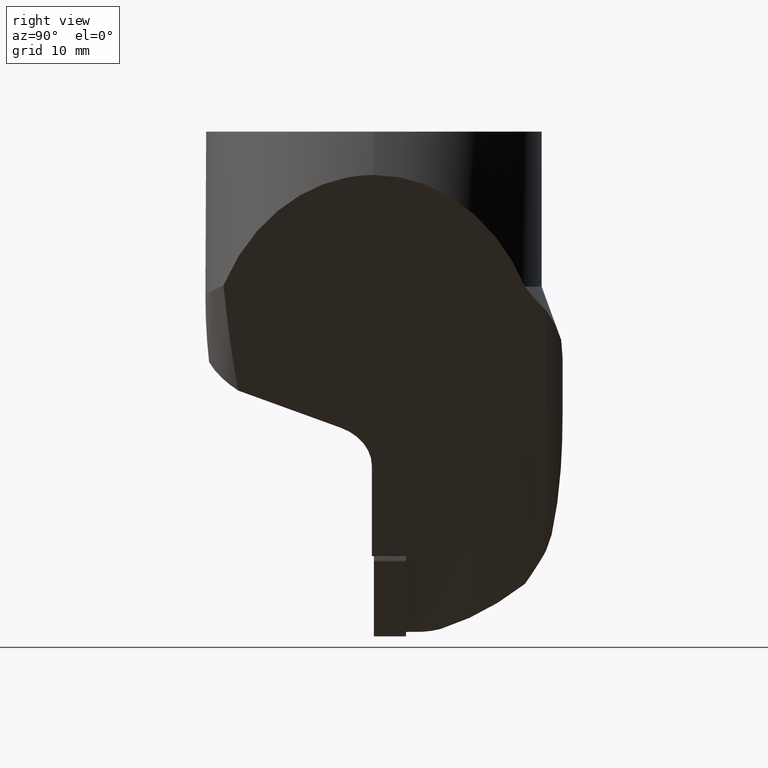
[diagram: clean part render]
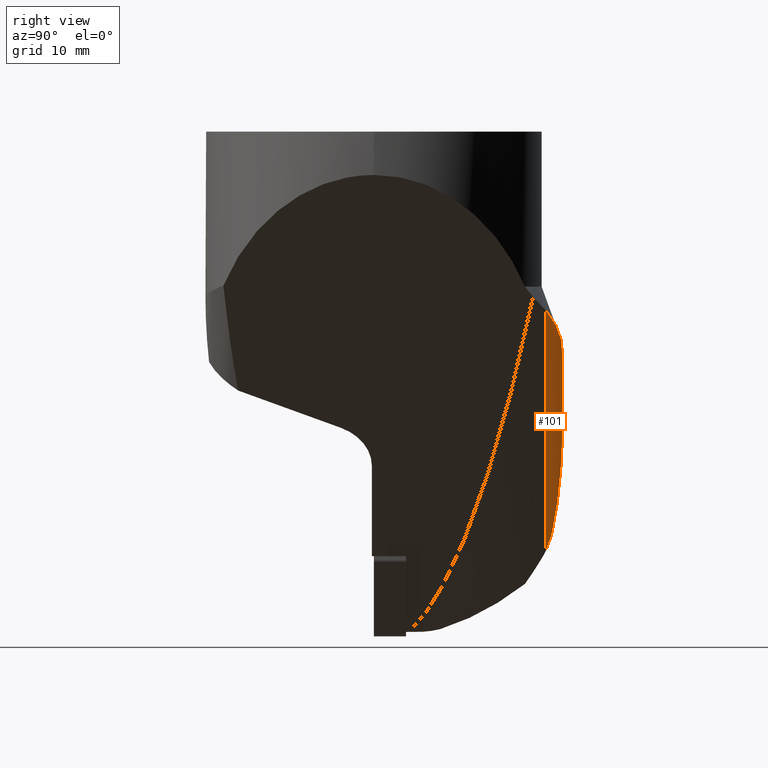
[diagram: same view with one face highlighted and labeled with its STEP entity id]
A machine part, right view. The second image highlights one B-rep face of the part: STEP entity #101.
In plain terms, the highlighted cylindrical surface (edge-blend (fillet) strip) has radius 5 mm, axis along (-0.7071, -0, -0.7071).
Its self-contained STEP definition (entity closure, byte-faithful):
#101=ADVANCED_FACE('',(#160),#161,.T.);
#160=FACE_OUTER_BOUND('',#296,.T.);
#161=CYLINDRICAL_SURFACE('',#297,4.99999999999998);
#296=EDGE_LOOP('',(#532,#533,#534,#535,#536));
#297=AXIS2_PLACEMENT_3D('',#537,#538,#539);
#532=ORIENTED_EDGE('',*,*,#650,.F.);
#533=ORIENTED_EDGE('',*,*,#659,.T.);
#534=ORIENTED_EDGE('',*,*,#648,.F.);
#535=ORIENTED_EDGE('',*,*,#660,.T.);
#536=ORIENTED_EDGE('',*,*,#661,.F.);
#537=CARTESIAN_POINT('',(-25.3050150379338,23.0,-52.000621025175));
#538=DIRECTION('',(-0.707106781186547,-0.0,-0.707106781186548));
#539=DIRECTION('',(0.614636297152856,-0.494413232473053,-0.614636297152855));
#648=EDGE_CURVE('',#790,#792,#793,.T.);
#650=EDGE_CURVE('',#794,#796,#797,.T.);
#659=EDGE_CURVE('',#794,#792,#807,.T.);
#660=EDGE_CURVE('',#790,#808,#809,.T.);
#661=EDGE_CURVE('',#796,#808,#810,.T.);
#790=VERTEX_POINT('',#1071);
#792=VERTEX_POINT('',#1078);
#793=B_SPLINE_CURVE_WITH_KNOTS('',3,(#1079,#1080,#1081,#1082,#1083,#1084,#1085,#1086,#1087,#1088,#1089,#1090,#1091,#1092,#1093,#1094,#1095,#1096),.UNSPECIFIED.,.F.,.F.,(4,2,2,2,2,2,2,2,4),(5.1330467204966,6.59550234998627,8.79400313331503,10.7510901450982,12.7081771568813,14.6652641686644,16.6223511804476,18.5794381922307,19.2784226521533),.UNSPECIFIED.);
#794=VERTEX_POINT('',#1097);
#796=VERTEX_POINT('',#1108);
#797=B_SPLINE_CURVE_WITH_KNOTS('',3,(#1109,#1110,#1111,#1112,#1113,#1114,#1115,#1116,#1117,#1118,#1119,#1120),.UNSPECIFIED.,.F.,.F.,(4,2,2,2,2,4),(31.0719741355826,33.7402552709443,36.8367739520657,43.0298113143085,49.2228486765513,51.5138692475254),.UNSPECIFIED.);
#807=LINE('',#1131,#1132);
#808=VERTEX_POINT('',#1133);
#809=LINE('',#1134,#1135);
#810=B_SPLINE_CURVE_WITH_KNOTS('',3,(#1136,#1137,#1138,#1139),.UNSPECIFIED.,.F.,.F.,(4,4),(-2.79781938367577,-3.31462944220904E-011),.UNSPECIFIED.);
#1071=CARTESIAN_POINT('',(6.20613842130488,25.5555555555556,-26.5671539353484));
#1078=CARTESIAN_POINT('',(-6.75182894528142,28.0,-33.4474349325227));
#1079=CARTESIAN_POINT('',(6.20613842130488,25.5555555555556,-26.5671539353484));
#1080=CARTESIAN_POINT('',(5.78493951605547,25.7533129161782,-26.8220461604326));
#1081=CARTESIAN_POINT('',(5.35573866019208,25.9379843195267,-27.0696804740666));
#1082=CARTESIAN_POINT('',(4.27769945771337,26.3636904741432,-27.6699724006385));
#1083=CARTESIAN_POINT('',(3.62699111115717,26.5860835765271,-28.0128801025591));
#1084=CARTESIAN_POINT('',(2.43575825430639,26.9429120248707,-28.6231304679184));
#1085=CARTESIAN_POINT('',(1.85529263750098,27.0952481902521,-28.912749989556));
#1086=CARTESIAN_POINT('',(0.666527040035874,27.3638807672778,-29.4989413308811));
#1087=CARTESIAN_POINT('',(0.058226126638175,27.4801617789541,-29.7955183162196));
#1088=CARTESIAN_POINT('',(-1.17368346117622,27.6751854614413,-30.3996687097084));
#1089=CARTESIAN_POINT('',(-1.79734092316431,27.7539162692364,-30.7072609588988));
#1090=CARTESIAN_POINT('',(-3.04617153222222,27.8760232717916,-31.339094207583));
#1091=CARTESIAN_POINT('',(-3.67134610510772,27.91938182926,-31.6633357973529));
#1092=CARTESIAN_POINT('',(-4.90802035731662,27.9772040805322,-32.3358319671907));
#1093=CARTESIAN_POINT('',(-5.52014140224392,27.9917076061685,-32.6845056538111));
#1094=CARTESIAN_POINT('',(-6.33101321373362,27.9991665342695,-33.1801093947242));
#1095=CARTESIAN_POINT('',(-6.54253910730282,28.0,-33.3126402733529));
#1096=CARTESIAN_POINT('',(-6.75182894528142,28.0,-33.4474349325227));
#1097=CARTESIAN_POINT('',(-15.3543268411535,28.0,-42.0499328283948));
#1108=CARTESIAN_POINT('',(-27.9007165232411,26.3794230357974,-59.8077522461925));
#1109=CARTESIAN_POINT('',(-15.3543268411535,28.0,-42.0499328283948));
#1110=CARTESIAN_POINT('',(-15.9281624531232,28.0,-42.8079942801503));
#1111=CARTESIAN_POINT('',(-16.4977706276452,27.9948064756487,-43.5804972537874));
#1112=CARTESIAN_POINT('',(-17.7225390565555,27.9669472111366,-45.267193077812));
#1113=CARTESIAN_POINT('',(-18.3767030350287,27.9416246601326,-46.1842663146906));
#1114=CARTESIAN_POINT('',(-20.3276104582317,27.8275187899111,-48.9449746910947));
#1115=CARTESIAN_POINT('',(-21.612805516116,27.7000987092555,-50.7973764854559));
#1116=CARTESIAN_POINT('',(-24.1222692965507,27.3265073055984,-54.4150229941438));
#1117=CARTESIAN_POINT('',(-25.3460594917559,27.0806808151456,-56.1806352271793));
#1118=CARTESIAN_POINT('',(-26.9530094114129,26.6617297131892,-58.4697147700703));
#1119=CARTESIAN_POINT('',(-27.4231538652631,26.5288517967163,-59.1363913322773));
#1120=CARTESIAN_POINT('',(-27.9007165232411,26.3794230357974,-59.8077522461925));
#1131=CARTESIAN_POINT('',(-15.3543268411535,28.0,-42.0499328283948));
#1132=VECTOR('',#1285,12.1657691946283);
#1133=CARTESIAN_POINT('',(-29.3842761158986,25.5555555555556,-62.157568472552));
#1134=CARTESIAN_POINT('',(6.20613842130488,25.5555555555556,-26.5671539353484));
#1135=VECTOR('',#1286,50.3324469289938);
#1136=CARTESIAN_POINT('',(-27.9007165232411,26.3794230357974,-59.8077522461925));
#1137=CARTESIAN_POINT('',(-28.4774941534012,26.1989500336463,-60.6185902596788));
#1138=CARTESIAN_POINT('',(-28.9558290509469,25.9267009294965,-61.4170017736994));
#1139=CARTESIAN_POINT('',(-29.3842761159001,25.5555555555542,-62.1575684725546));
#1285=DIRECTION('',(0.707106781186547,0.0,0.707106781186548));
#1286=DIRECTION('',(-0.707106781186546,0.0,-0.707106781186549));